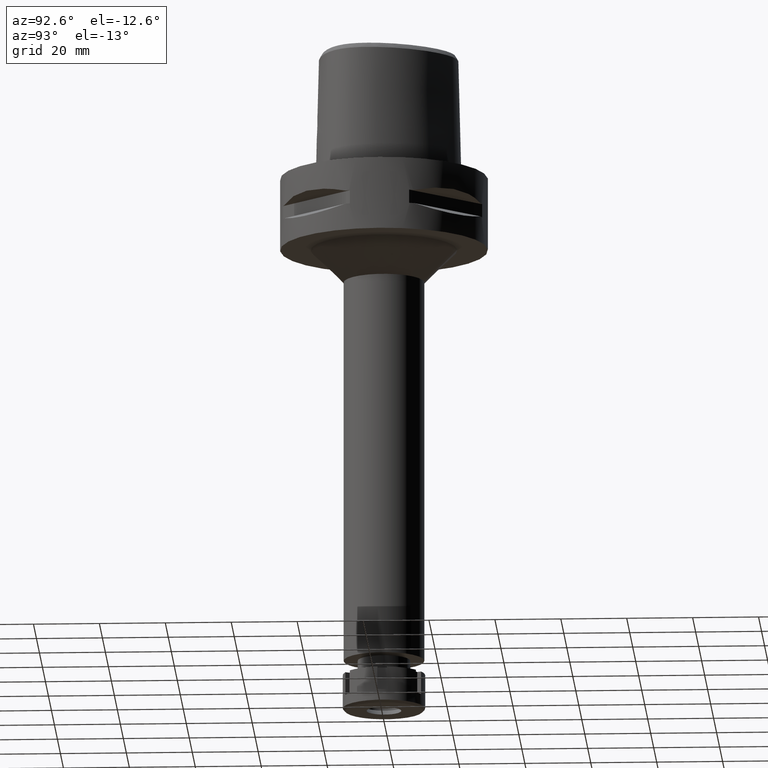
[diagram: clean part render]
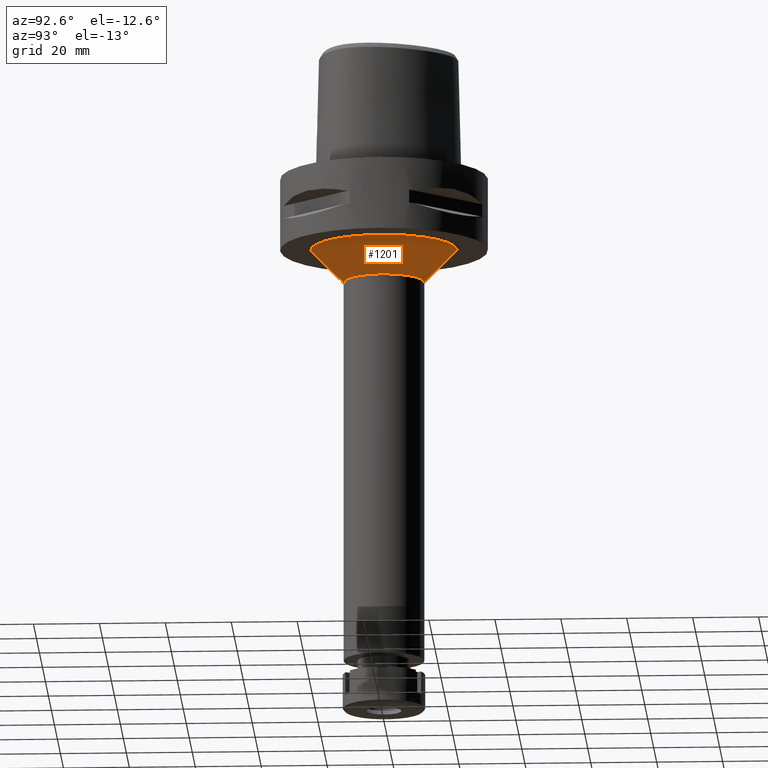
[diagram: same view with one face highlighted and labeled with its STEP entity id]
A machine part, auxiliary view. The second image highlights one B-rep face of the part: STEP entity #1201.
In plain terms, the highlighted conical surface has half-angle 45 deg.
Its self-contained STEP definition (entity closure, byte-faithful):
#150 = CARTESIAN_POINT ( 'NONE',  ( 0.0000000000000000000, -22.25000000000000000, -22.00000000000000000 ) ) ;
#464 = EDGE_CURVE ( 'NONE', #4314, #1882, #4634, .T. ) ;
#746 = EDGE_CURVE ( 'NONE', #2444, #2125, #4103, .T. ) ;
#783 = CARTESIAN_POINT ( 'NONE',  ( 0.0000000000000000000, 0.0000000000000000000, -32.00000000000000000 ) ) ;
#996 = LINE ( 'NONE', #3632, #2686 ) ;
#1100 = DIRECTION ( 'NONE',  ( 0.0000000000000000000, 0.0000000000000000000, -1.000000000000000000 ) ) ;
#1166 = CARTESIAN_POINT ( 'NONE',  ( 0.0000000000000000000, 0.0000000000000000000, -22.00000000000000000 ) ) ;
#1201 = ADVANCED_FACE ( 'NONE', ( #3360 ), #3652, .T. ) ;
#1207 = DIRECTION ( 'NONE',  ( 0.0000000000000000000, 0.0000000000000000000, -1.000000000000000000 ) ) ;
#1226 = AXIS2_PLACEMENT_3D ( 'NONE', #5032, #2517, #3335 ) ;
#1316 = ORIENTED_EDGE ( 'NONE', *, *, #746, .F. ) ;
#1504 = CARTESIAN_POINT ( 'NONE',  ( 0.0000000000000000000, -12.25000000000000000, -32.00000000000000000 ) ) ;
#1631 = ORIENTED_EDGE ( 'NONE', *, *, #2111, .T. ) ;
#1800 = ORIENTED_EDGE ( 'NONE', *, *, #464, .T. ) ;
#1882 = VERTEX_POINT ( 'NONE', #2635 ) ;
#2111 = EDGE_CURVE ( 'NONE', #1882, #2125, #3199, .T. ) ;
#2125 = VERTEX_POINT ( 'NONE', #1504 ) ;
#2263 = DIRECTION ( 'NONE',  ( 0.0000000000000000000, 0.7071067811865474617, -0.7071067811865474617 ) ) ;
#2292 = AXIS2_PLACEMENT_3D ( 'NONE', #1166, #1100, #2540 ) ;
#2444 = VERTEX_POINT ( 'NONE', #2604 ) ;
#2517 = DIRECTION ( 'NONE',  ( 0.0000000000000000000, 0.0000000000000000000, 1.000000000000000000 ) ) ;
#2540 = DIRECTION ( 'NONE',  ( 0.0000000000000000000, 1.000000000000000000, 0.0000000000000000000 ) ) ;
#2604 = CARTESIAN_POINT ( 'NONE',  ( 0.0000000000000000000, 12.25000000000000000, -32.00000000000000000 ) ) ;
#2635 = CARTESIAN_POINT ( 'NONE',  ( 0.0000000000000000000, -22.25000000000000000, -22.00000000000000000 ) ) ;
#2686 = VECTOR ( 'NONE', #5241, 1000.000000000000114 ) ;
#3199 = LINE ( 'NONE', #150, #3658 ) ;
#3335 = DIRECTION ( 'NONE',  ( 0.0000000000000000000, 1.000000000000000000, 0.0000000000000000000 ) ) ;
#3360 = FACE_OUTER_BOUND ( 'NONE', #3574, .T. ) ;
#3574 = EDGE_LOOP ( 'NONE', ( #1800, #1631, #1316, #3797 ) ) ;
#3632 = CARTESIAN_POINT ( 'NONE',  ( 0.0000000000000000000, 22.25000000000000000, -22.00000000000000000 ) ) ;
#3652 = CONICAL_SURFACE ( 'NONE', #1226, 17.25000000000000000, 0.7853981633972997312 ) ;
#3658 = VECTOR ( 'NONE', #2263, 1000.000000000000114 ) ;
#3768 = DIRECTION ( 'NONE',  ( 0.0000000000000000000, 1.000000000000000000, 0.0000000000000000000 ) ) ;
#3797 = ORIENTED_EDGE ( 'NONE', *, *, #4263, .F. ) ;
#3834 = AXIS2_PLACEMENT_3D ( 'NONE', #783, #1207, #3768 ) ;
#4103 = CIRCLE ( 'NONE', #3834, 12.25000000000000000 ) ;
#4263 = EDGE_CURVE ( 'NONE', #4314, #2444, #996, .T. ) ;
#4314 = VERTEX_POINT ( 'NONE', #4535 ) ;
#4535 = CARTESIAN_POINT ( 'NONE',  ( 0.0000000000000000000, 22.25000000000000000, -22.00000000000000000 ) ) ;
#4634 = CIRCLE ( 'NONE', #2292, 22.25000000000000000 ) ;
#5032 = CARTESIAN_POINT ( 'NONE',  ( 0.0000000000000000000, 0.0000000000000000000, -27.00000000000000000 ) ) ;
#5241 = DIRECTION ( 'NONE',  ( 0.0000000000000000000, -0.7071067811865474617, -0.7071067811865474617 ) ) ;